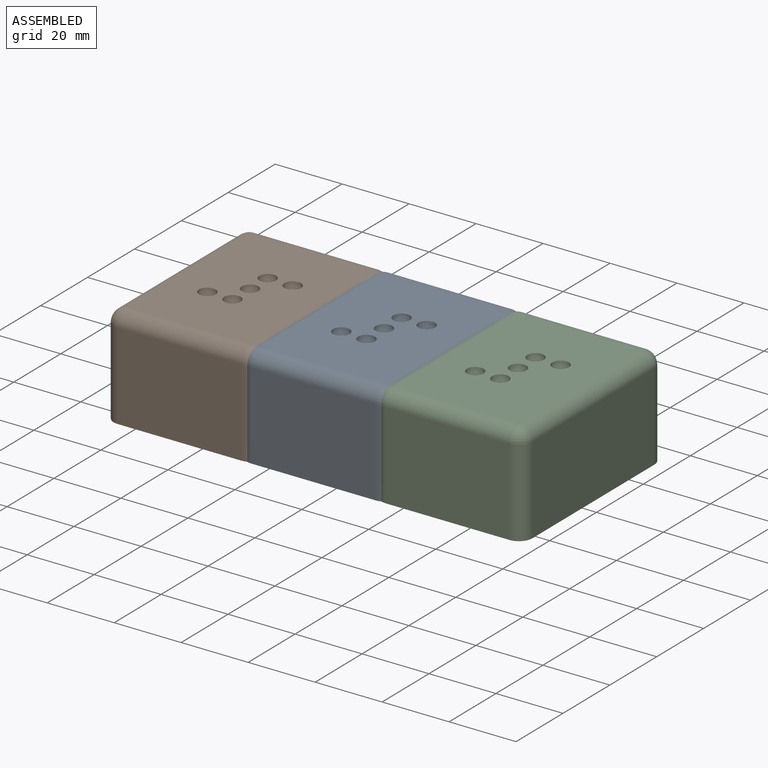
[diagram: assembled view]
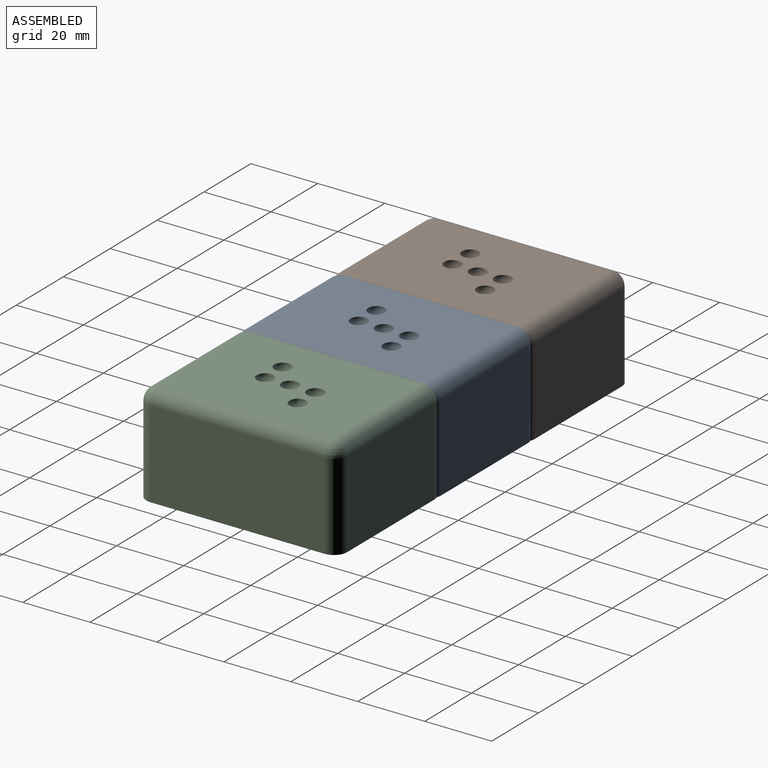
[diagram: assembled view, second angle]
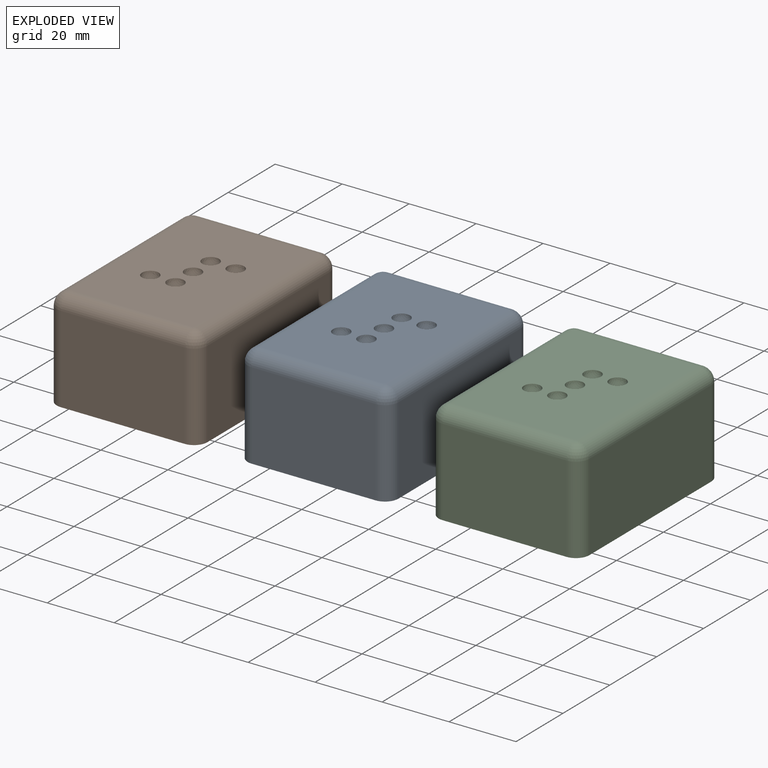
[diagram: exploded view]
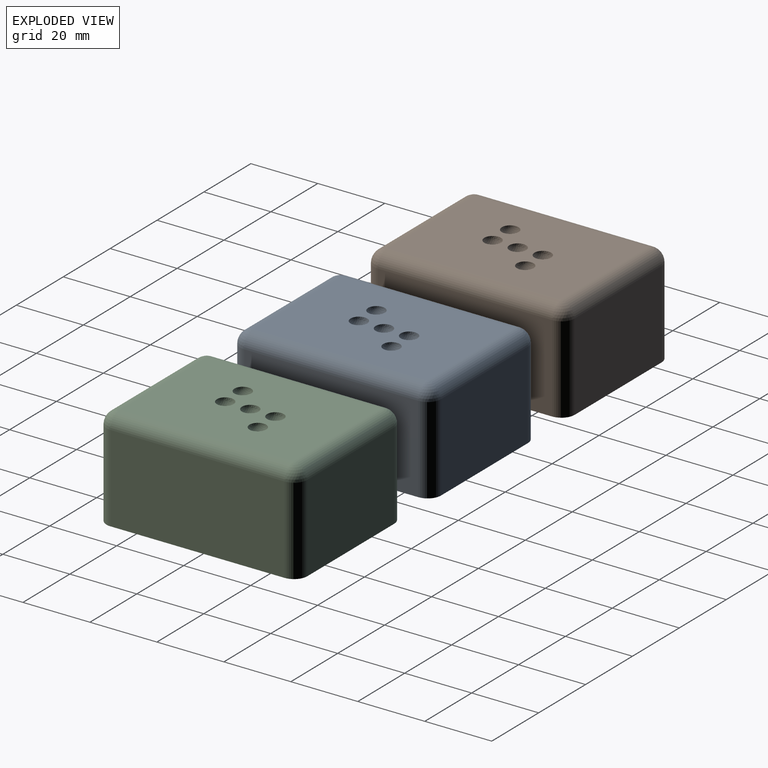
[diagram: exploded view, second angle]
ASSEMBLY  parts=3 mates=2
PART A: 44 faces, bbox 45x60x30 mm
  f0: plane 60x45mm, normal (0,0,-1), area 297.6mm2, adj f1,f2,f3,f4,f6,f8,f11,f17
  f1: plane 37x26mm, normal (0,-1,0), area 962mm2, adj f0,f8,f14,f17
  f2: plane 52x26mm, normal (1,0,0), area 1352mm2, adj f0,f11,f15,f17
  f3: plane 37x26mm, normal (0,1,0), area 962mm2, adj f0,f6,f10,f11
  f4: plane 52x26mm, normal (-1,0,0), area 1352mm2, adj f0,f6,f8,f9
  f5: plane 52x37mm, normal (0,0,1), area 1825.8mm2, adj f9,f10,f14,f15,f39,f40,f41,f42
  f6: cylinder r=4mm len=26mm, axis (0,0,1), area 163.4mm2, adj f0,f3,f4,f7
  f7: sphere r=4mm, area 25.1mm2, adj f6,f9,f10
  f8: cylinder r=4mm len=26mm, axis (0,0,-1), area 163.4mm2, adj f0,f1,f4,f12
  f9: cylinder r=4mm len=52mm, axis (0,1,0), area 326.7mm2, adj f4,f5,f7,f12
  f10: cylinder r=4mm len=37mm, axis (1,0,0), area 232.5mm2, adj f3,f5,f7,f13
  f11: cylinder r=4mm len=26mm, axis (0,0,-1), area 163.4mm2, adj f0,f2,f3,f13
  f12: sphere r=4mm, area 25.1mm2, adj f8,f9,f14
  f13: sphere r=4mm, area 25.1mm2, adj f10,f11,f15
  f14: cylinder r=4mm len=37mm, axis (-1,0,0), area 232.5mm2, adj f1,f5,f12,f16
  f15: cylinder r=4mm len=52mm, axis (0,-1,0), area 326.7mm2, adj f2,f5,f13,f16
  f16: sphere r=4mm, area 25.1mm2, adj f14,f15,f17
  f17: cylinder r=4mm len=26mm, axis (0,0,1), area 163.4mm2, adj f0,f1,f2,f16
  f18: plane 37x26mm, normal (0,1,0), area 962mm2, adj f0,f24,f30,f33
  f19: plane 52x26mm, normal (-1,0,0), area 1352mm2, adj f0,f27,f31,f33
  f20: plane 37x26mm, normal (0,-1,0), area 962mm2, adj f0,f22,f26,f27
  f21: plane 52x26mm, normal (1,0,0), area 1352mm2, adj f0,f22,f24,f25
  f22: cylinder r=2.5mm len=26mm, axis (0,0,1), area 102.1mm2, adj f0,f20,f21,f23
  f23: sphere r=2.5mm, area 9.8mm2, adj f22,f25,f26
  f24: cylinder r=2.5mm len=26mm, axis (0,0,-1), area 102.1mm2, adj f0,f18,f21,f28
  f25: cylinder r=2.5mm len=52mm, axis (0,1,0), area 204.2mm2, adj f21,f23,f28,f36
  f26: cylinder r=2.5mm len=37mm, axis (1,0,0), area 145.3mm2, adj f20,f23,f29,f37
  f27: cylinder r=2.5mm len=26mm, axis (0,0,-1), area 102.1mm2, adj f0,f19,f20,f29
  f28: sphere r=2.5mm, area 9.8mm2, adj f24,f25,f30
  f29: sphere r=2.5mm, area 9.8mm2, adj f26,f27,f31
  f30: cylinder r=2.5mm len=37mm, axis (-1,0,0), area 145.3mm2, adj f18,f28,f32,f35
  f31: cylinder r=2.5mm len=52mm, axis (0,-1,0), area 204.2mm2, adj f19,f29,f32,f34
  f32: sphere r=2.5mm, area 9.8mm2, adj f30,f31,f33
  f33: cylinder r=2.5mm len=26mm, axis (0,0,1), area 102.1mm2, adj f0,f18,f19,f32
  f34: plane 52x2mm, normal (1,0,0), area 104mm2, adj f31,f35,f37,f38
  f35: plane 37x2mm, normal (0,-1,0), area 74mm2, adj f30,f34,f36,f38
  f36: plane 52x2mm, normal (-1,0,0), area 104mm2, adj f25,f35,f37,f38
  f37: plane 37x2mm, normal (0,1,0), area 74mm2, adj f26,f34,f36,f38
  f38: plane 52x37mm, normal (0,0,-1), area 1924mm2, adj f34,f35,f36,f37
  f39: sphere r=2.5mm, area 39.3mm2, adj f5
  f40: sphere r=2.5mm, area 39.3mm2, adj f5
  f41: sphere r=2.5mm, area 39.3mm2, adj f5
  f42: sphere r=2.5mm, area 39.3mm2, adj f5
  f43: sphere r=2.5mm, area 39.3mm2, adj f5
PART B: same geometry as A
PART C: same geometry as A
PLACE A t=(35.89,0.94,-13.07)mm
PLACE B t=(-4.11,0.94,-13.07)mm
PLACE C t=(75.89,0.94,-13.07)mm
MATE parallel A.f14 <-> C.f14  axis (1,0,0) through (58.39,-25.06,12.93)mm
MATE parallel B.f2 <-> A.f4  axis (1,0,0) through (18.39,0.94,-0.07)mm
